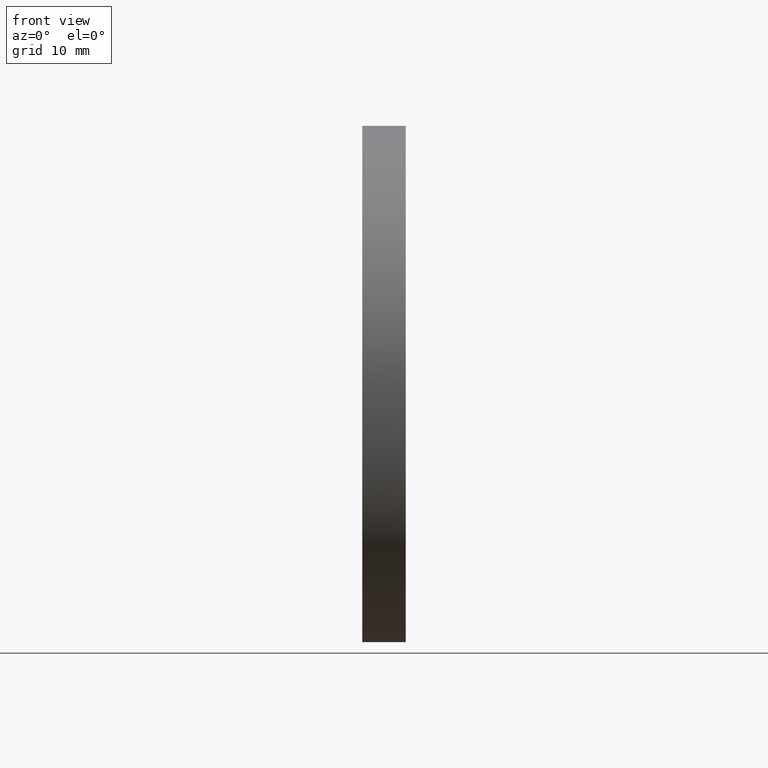
[diagram: clean part render]
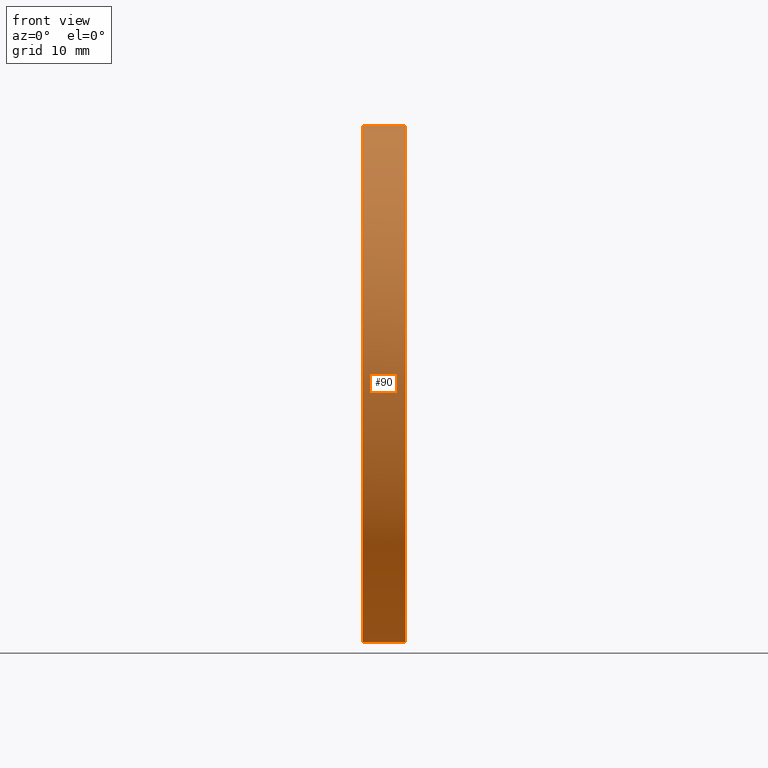
[diagram: same view with one face highlighted and labeled with its STEP entity id]
A machine part, front view. The second image highlights one B-rep face of the part: STEP entity #90.
In plain terms, the highlighted cylindrical surface (partial cylindrical patch) has radius 25 mm, axis along (-1, -0, -0).
Its self-contained STEP definition (entity closure, byte-faithful):
#3 = EDGE_CURVE ( 'NONE', #99, #163, #181, .T. ) ;
#5 = CARTESIAN_POINT ( 'NONE',  ( 105.6218371238301200, 65.15563045701519200, -24.99999999999998600 ) ) ;
#14 = CIRCLE ( 'NONE', #164, 24.99999999999999300 ) ;
#15 = CARTESIAN_POINT ( 'NONE',  ( 113.7394371346435000, 65.15563045701519200, 0.0000000000000000000 ) ) ;
#17 = DIRECTION ( 'NONE',  ( -1.000000000000000000, -0.0000000000000000000, -0.0000000000000000000 ) ) ;
#18 = CARTESIAN_POINT ( 'NONE',  ( 117.9526836430682700, 65.15563045701519200, -24.99999999999998200 ) ) ;
#25 = VERTEX_POINT ( 'NONE', #18 ) ;
#29 = DIRECTION ( 'NONE',  ( -1.000000000000000000, -0.0000000000000000000, -0.0000000000000000000 ) ) ;
#34 = ORIENTED_EDGE ( 'NONE', *, *, #111, .F. ) ;
#42 = CARTESIAN_POINT ( 'NONE',  ( 113.7394371346435000, 65.15563045701519200, 24.99999999999999300 ) ) ;
#44 = AXIS2_PLACEMENT_3D ( 'NONE', #100, #104, #173 ) ;
#46 = CYLINDRICAL_SURFACE ( 'NONE', #44, 24.99999999999998600 ) ;
#47 = DIRECTION ( 'NONE',  ( 0.0000000000000000000, 0.0000000000000000000, 1.000000000000000000 ) ) ;
#58 = CARTESIAN_POINT ( 'NONE',  ( 117.9526836430682700, 65.15563045701519200, 0.0000000000000000000 ) ) ;
#62 = ORIENTED_EDGE ( 'NONE', *, *, #3, .T. ) ;
#63 = CARTESIAN_POINT ( 'NONE',  ( 117.9526836430682700, 65.15563045701519200, 0.0000000000000000000 ) ) ;
#65 = VECTOR ( 'NONE', #29, 1000.000000000000000 ) ;
#73 = ORIENTED_EDGE ( 'NONE', *, *, #96, .F. ) ;
#83 = FACE_OUTER_BOUND ( 'NONE', #158, .T. ) ;
#86 = DIRECTION ( 'NONE',  ( 0.0000000000000000000, 0.0000000000000000000, 1.000000000000000000 ) ) ;
#88 = VERTEX_POINT ( 'NONE', #142 ) ;
#90 = ADVANCED_FACE ( 'NONE', ( #83 ), #46, .T. ) ;
#92 = ORIENTED_EDGE ( 'NONE', *, *, #109, .T. ) ;
#96 = EDGE_CURVE ( 'NONE', #88, #163, #14, .T. ) ;
#98 = CIRCLE ( 'NONE', #137, 24.99999999999998200 ) ;
#99 = VERTEX_POINT ( 'NONE', #143 ) ;
#100 = CARTESIAN_POINT ( 'NONE',  ( 105.6218371238301200, 65.15563045701519200, 0.0000000000000000000 ) ) ;
#104 = DIRECTION ( 'NONE',  ( -1.000000000000000000, -0.0000000000000000000, -0.0000000000000000000 ) ) ;
#109 = EDGE_CURVE ( 'NONE', #25, #131, #98, .T. ) ;
#111 = EDGE_CURVE ( 'NONE', #25, #88, #186, .T. ) ;
#121 = VECTOR ( 'NONE', #172, 1000.000000000000000 ) ;
#123 = AXIS2_PLACEMENT_3D ( 'NONE', #63, #160, #47 ) ;
#127 = DIRECTION ( 'NONE',  ( 0.0000000000000000000, 0.0000000000000000000, 1.000000000000000000 ) ) ;
#128 = CARTESIAN_POINT ( 'NONE',  ( 105.6218371238301200, 65.15563045701519200, 24.99999999999998600 ) ) ;
#130 = DIRECTION ( 'NONE',  ( -1.000000000000000000, -0.0000000000000000000, -0.0000000000000000000 ) ) ;
#131 = VERTEX_POINT ( 'NONE', #141 ) ;
#137 = AXIS2_PLACEMENT_3D ( 'NONE', #58, #130, #127 ) ;
#141 = CARTESIAN_POINT ( 'NONE',  ( 117.9526836430682700, 40.15563045701479400, -3.061616997868400000E-015 ) ) ;
#142 = CARTESIAN_POINT ( 'NONE',  ( 113.7394371346435000, 65.15563045701519200, -24.99999999999999300 ) ) ;
#143 = CARTESIAN_POINT ( 'NONE',  ( 117.9526836430682700, 65.15563045701519200, 24.99999999999998200 ) ) ;
#157 = CIRCLE ( 'NONE', #123, 24.99999999999998200 ) ;
#158 = EDGE_LOOP ( 'NONE', ( #34, #92, #168, #62, #73 ) ) ;
#160 = DIRECTION ( 'NONE',  ( -1.000000000000000000, -0.0000000000000000000, -0.0000000000000000000 ) ) ;
#163 = VERTEX_POINT ( 'NONE', #42 ) ;
#164 = AXIS2_PLACEMENT_3D ( 'NONE', #15, #17, #86 ) ;
#166 = EDGE_CURVE ( 'NONE', #131, #99, #157, .T. ) ;
#168 = ORIENTED_EDGE ( 'NONE', *, *, #166, .T. ) ;
#172 = DIRECTION ( 'NONE',  ( -1.000000000000000000, -0.0000000000000000000, -0.0000000000000000000 ) ) ;
#173 = DIRECTION ( 'NONE',  ( 0.0000000000000000000, 0.0000000000000000000, 1.000000000000000000 ) ) ;
#181 = LINE ( 'NONE', #128, #121 ) ;
#186 = LINE ( 'NONE', #5, #65 ) ;